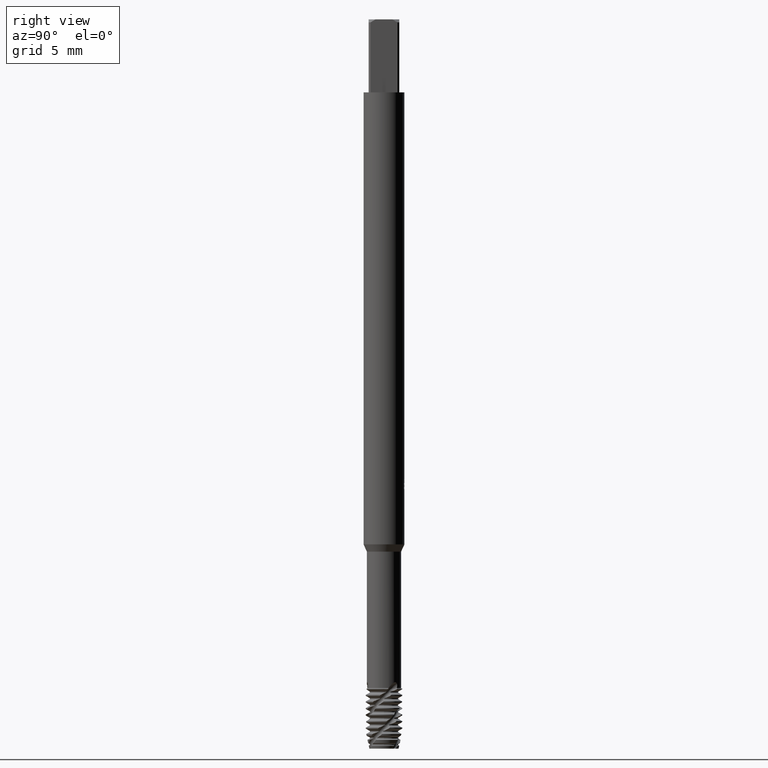
[diagram: clean part render]
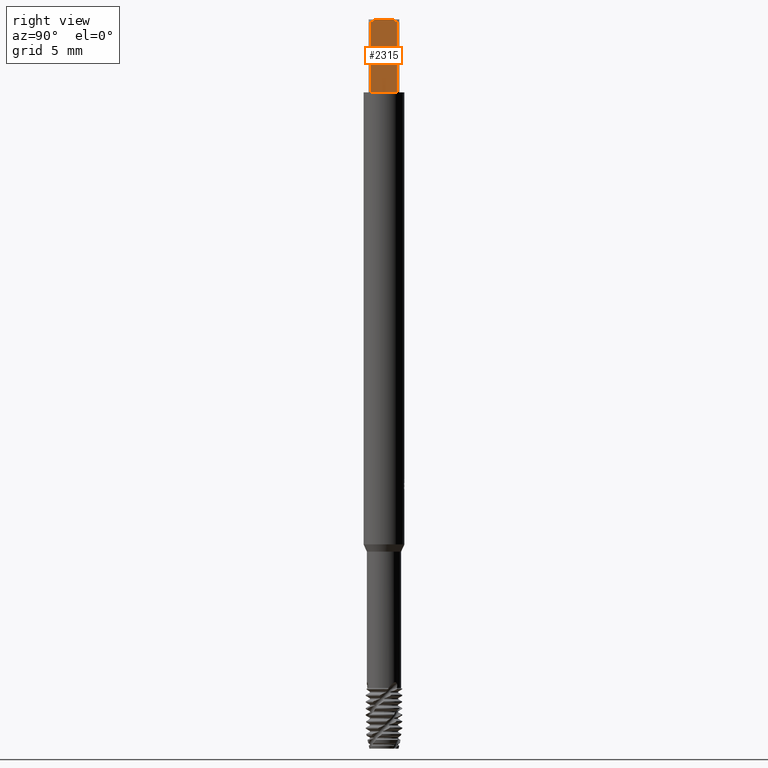
[diagram: same view with one face highlighted and labeled with its STEP entity id]
A machine part, right view. The second image highlights one B-rep face of the part: STEP entity #2315.
In plain terms, the highlighted planar face has unit normal (1, 0, 0).
Its self-contained STEP definition (entity closure, byte-faithful):
#1747=EDGE_CURVE('',#3033,#3275,#4625,.T.);
#2269=EDGE_CURVE('',#3883,#2817,#5193,.T.);
#2315=ADVANCED_FACE('',(#5243),#5244,.T.);
#2383=EDGE_CURVE('',#2817,#2799,#5321,.T.);
#2725=EDGE_CURVE('',#3275,#2767,#5689,.T.);
#2767=VERTEX_POINT('',#5735);
#2799=VERTEX_POINT('',#5769);
#2817=VERTEX_POINT('',#5787);
#3033=VERTEX_POINT('',#6020);
#3275=VERTEX_POINT('',#6288);
#3517=EDGE_CURVE('',#2799,#3033,#6551,.T.);
#3717=EDGE_CURVE('',#2767,#3883,#6765,.T.);
#3883=VERTEX_POINT('',#6940);
#4625=(B_SPLINE_CURVE(2,(#8878,#8879,#8880),.UNSPECIFIED.,.F.,.F.)B_SPLINE_CURVE_WITH_KNOTS((3,3),(0.0,0.399055598432478),.UNSPECIFIED.)RATIONAL_B_SPLINE_CURVE((1.0,1.00892504363194,1.0))BOUNDED_CURVE()REPRESENTATION_ITEM('')GEOMETRIC_REPRESENTATION_ITEM()CURVE());
#5193=LINE('',#10612,#10613);
#5243=FACE_OUTER_BOUND('',#10712,.T.);
#5244=PLANE('',#10713);
#5321=(B_SPLINE_CURVE(2,(#10986,#10987,#10988),.UNSPECIFIED.,.F.,.F.)B_SPLINE_CURVE_WITH_KNOTS((3,3),(0.0,0.399055598432478),.UNSPECIFIED.)RATIONAL_B_SPLINE_CURVE((1.0,1.00892504363194,1.0))BOUNDED_CURVE()REPRESENTATION_ITEM('')GEOMETRIC_REPRESENTATION_ITEM()CURVE());
#5689=LINE('',#12287,#12288);
#5735=CARTESIAN_POINT('',(1.05,0.926012958872607,-5.0));
#5769=CARTESIAN_POINT('',(1.05,-0.580947501931112,0.0));
#5787=CARTESIAN_POINT('',(1.05,-0.926012958872607,-0.200000000000003));
#6020=CARTESIAN_POINT('',(1.05,0.580947501931112,0.0));
#6288=CARTESIAN_POINT('',(1.05,0.926012958872607,-0.200000000000003));
#6551=LINE('',#15096,#15097);
#6765=LINE('',#15917,#15918);
#6940=CARTESIAN_POINT('',(1.05,-0.926012958872607,-5.0));
#8878=CARTESIAN_POINT('',(1.05,0.580947501931112,5.55111512312578E-017));
#8879=CARTESIAN_POINT('',(1.05,0.74020848205796,-0.0771018904664953));
#8880=CARTESIAN_POINT('',(1.05,0.926012958872606,-0.200000000000003));
#10612=CARTESIAN_POINT('',(1.05,-0.926012958872607,-2.6));
#10613=VECTOR('',#19025,1.0);
#10712=EDGE_LOOP('',(#19082,#19083,#19084,#19085,#19086,#19087));
#10713=AXIS2_PLACEMENT_3D('',#19088,#19089,#19090);
#10986=CARTESIAN_POINT('',(1.05,-0.926012958872606,-0.200000000000003));
#10987=CARTESIAN_POINT('',(1.05,-0.74020848205796,-0.0771018904664953));
#10988=CARTESIAN_POINT('',(1.05,-0.580947501931112,5.55111512312578E-017));
#12287=CARTESIAN_POINT('',(1.05,0.926012958872607,-2.6));
#12288=VECTOR('',#19580,1.0);
#15096=CARTESIAN_POINT('',(1.05,0.3,0.0));
#15097=VECTOR('',#20437,1.0);
#15917=CARTESIAN_POINT('',(1.05,0.0,-5.0));
#15918=VECTOR('',#20605,1.0);
#19025=DIRECTION('',(-0.0,-0.0,1.0));
#19082=ORIENTED_EDGE('',*,*,#2725,.F.);
#19083=ORIENTED_EDGE('',*,*,#1747,.F.);
#19084=ORIENTED_EDGE('',*,*,#3517,.F.);
#19085=ORIENTED_EDGE('',*,*,#2383,.F.);
#19086=ORIENTED_EDGE('',*,*,#2269,.F.);
#19087=ORIENTED_EDGE('',*,*,#3717,.F.);
#19088=CARTESIAN_POINT('',(1.05,0.0,-2.0));
#19089=DIRECTION('',(1.0,0.0,0.0));
#19090=DIRECTION('',(0.0,0.0,-1.0));
#19580=DIRECTION('',(0.0,0.0,-1.0));
#20437=DIRECTION('',(-0.0,1.0,0.0));
#20605=DIRECTION('',(0.0,-1.0,0.0));